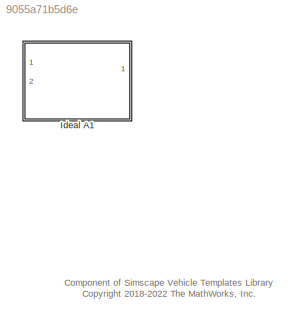
MODEL slx_9055a71b5d6e
KIND library
CONFIG AbsTol = auto
CONFIG EnableMultiTasking = off
CONFIG FixedStep = auto
CONFIG MaxStep = auto
CONFIG MinStep = auto
CONFIG RelTol = 1e-3
CONFIG SampleTimeConstraint = Unconstrained
CONFIG SolverName = VariableStepAuto
CONFIG StartTime = 0.0
CONFIG StopTime = 10.0
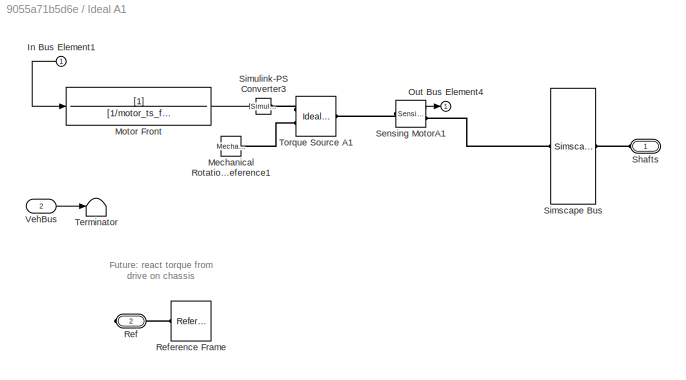
BLOCK [SubSystem] Ideal A1
  Ports = [2, 1, 0, 0, 0, 1, 1]
  RequestExecContextInheritance = off
  VariantControl = IdealOneMotor
BLOCK [Inport] Ideal A1/In Bus Element1
BLOCK [Reference] Ideal A1/Mechanical Rotational Reference1  REF=fl_lib/Mechanical/Rotational Elements/Mechanical
Rotational Reference
  NameLocation = top
  Ports = [0, 0, 0, 0, 0, 1]
  SourceBlock = fl_lib/Mechanical/Rotational Elements/Mechanical\nRotational Reference
  SourceProductBaseCode = PW,SS,VE
  SourceType = Mechanical\nRotational Reference
BLOCK [TransferFcn] Ideal A1/Motor Front
  Denominator = [1/motor_ts_f 1]
BLOCK [Outport] Ideal A1/Out Bus Element4
  VectorParamsAs1DForOutWhenUnconnected = off
BLOCK [PMIOPort] Ideal A1/Ref
  NameLocation = top
  Port = 2
  Side = Right
BLOCK [Reference] Ideal A1/Reference Frame  REF=sm_lib/Frames and
Transforms/Reference
Frame
  NameLocation = top
  Ports = [0, 0, 0, 0, 0, 0, 1]
  SourceBlock = sm_lib/Frames and\nTransforms/Reference\nFrame
  SourceProductBaseCode = MS
  SourceType = Reference\nFrame
BLOCK [Reference] Ideal A1/Sensing MotorA1  REF=Power_Components/Sensing Ideal Motor
  Ports = [0, 1, 0, 0, 0, 1, 1]
  SourceBlock = Power_Components/Sensing Ideal Motor
  SourceType = SubSystem
BLOCK [PMIOPort] Ideal A1/Shafts
  NameLocation = top
  Side = Left
BLOCK [SimscapeBus] Ideal A1/Simscape Bus
  HierarchyStrings = ShaftA1
  Ports = [0, 0, 0, 0, 0, 1, 1]
BLOCK [Reference] Ideal A1/Simulink-PS Converter3  REF=nesl_utility/Simulink-PS
Converter
  NameLocation = top
  Ports = [1, 0, 0, 0, 0, 0, 1]
  SourceBlock = nesl_utility/Simulink-PS\nConverter
  SourceProductBaseCode = SS,PW,VE
  SourceType = Simulink-PS\nConverter
BLOCK [Terminator] Ideal A1/Terminator
BLOCK [Reference] Ideal A1/Torque Source A1  REF=fl_lib/Mechanical/Mechanical Sources/Ideal Torque Source
  NameLocation = top
  Ports = [0, 0, 0, 0, 0, 1, 2]
  SourceBlock = fl_lib/Mechanical/Mechanical Sources/Ideal Torque Source
  SourceProductBaseCode = PW,SS,VE
  SourceType = Ideal Torque Source
BLOCK [Inport] Ideal A1/VehBus
  Port = 2
ANNOTATION (root): Component of Simscape Vehicle Templates Library <copyright redacted>
ANNOTATION Ideal A1: Future: react torque from drive on chassis
LINE Ideal A1/In Bus Element1:1 -> Ideal A1/Motor Front:1
LINE Ideal A1/Motor Front:1 -> Ideal A1/Simulink-PS Converter3:1
LINE Ideal A1/Sensing MotorA1:1 -> Ideal A1/Out Bus Element4:1
LINE Ideal A1/VehBus:1 -> Ideal A1/Terminator:1
PLINE Ideal A1/Mechanical Rotational Reference1:LConn1 -- Ideal A1/Torque Source A1:RConn2
PLINE Ideal A1/Ref:RConn1 -- Ideal A1/Reference Frame:RConn1
PLINE Ideal A1/Sensing MotorA1:LConn1 -- Ideal A1/Torque Source A1:LConn1
PLINE Ideal A1/Sensing MotorA1:RConn1 -- Ideal A1/Simscape Bus:LConn1
PLINE Ideal A1/Shafts:RConn1 -- Ideal A1/Simscape Bus:RConn1
PLINE Ideal A1/Simulink-PS Converter3:RConn1 -- Ideal A1/Torque Source A1:RConn1
